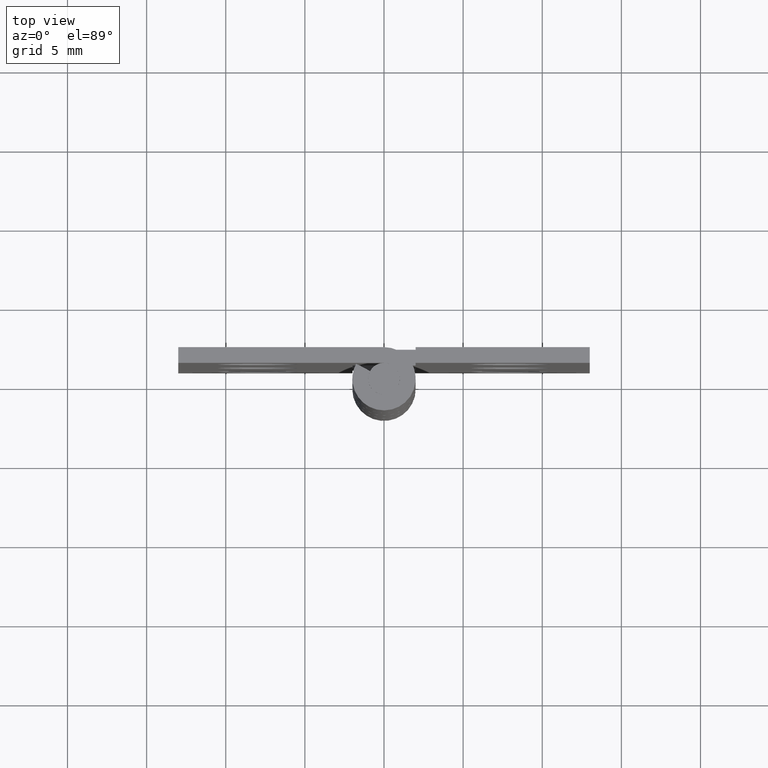
[diagram: clean part render]
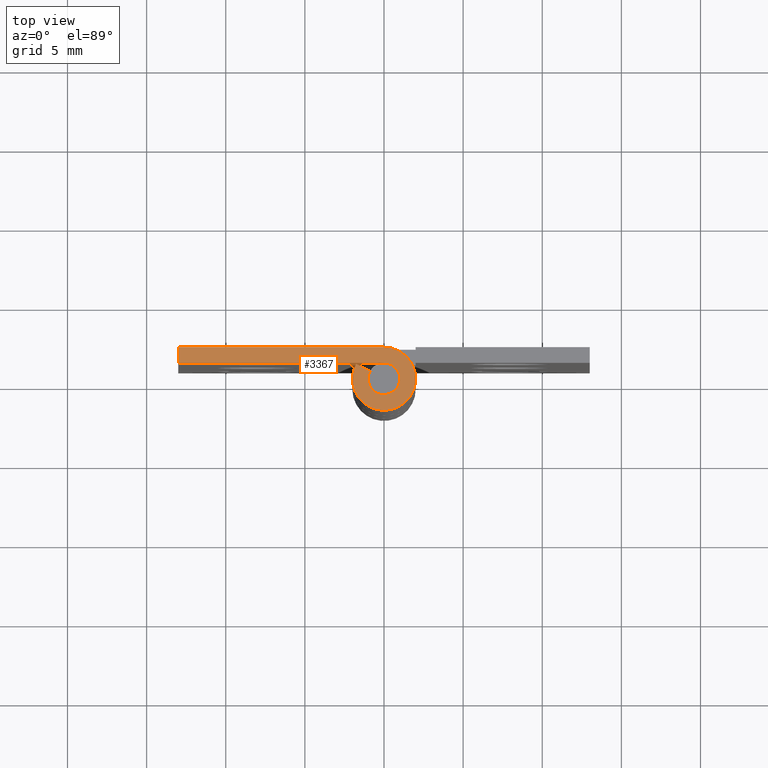
[diagram: same view with one face highlighted and labeled with its STEP entity id]
A machine part, top view. The second image highlights one B-rep face of the part: STEP entity #3367.
In plain terms, the highlighted face is a freeform B-spline surface patch.
Its self-contained STEP definition (entity closure, byte-faithful):
#3290=CARTESIAN_POINT('',(-13.749246279058150,-2.199489962611153,37.999992000000013));
#3291=CARTESIAN_POINT('',(2.749172770094424,-2.199489962611153,37.999992000000013));
#3292=CARTESIAN_POINT('',(-13.749246279058150,2.199785350273177,37.999992000000013));
#3293=CARTESIAN_POINT('',(2.749172770094424,2.199785350273177,37.999992000000013));
#3294=B_SPLINE_SURFACE_WITH_KNOTS('',1,1,((#3290,#3292),(#3291,#3293)),.UNSPECIFIED.,.F.,.F.,.U.,(2,2),(2,2),(0.0,16.498419049152570),(0.0,4.399275312884329),.UNSPECIFIED.);
#3295=CARTESIAN_POINT('',(-0.879985795339901,0.475000000000000,37.999992000000049));
#3296=VERTEX_POINT('',#3295);
#3297=CARTESIAN_POINT('',(-1.759971590679800,0.950000000000000,37.999992000000049));
#3298=VERTEX_POINT('',#3297);
#3299=CARTESIAN_POINT('',(-0.879985795339901,0.475000000000000,37.999992000000049));
#3300=CARTESIAN_POINT('',(-1.759971590679800,0.950000000000000,37.999992000000049));
#3301=QUASI_UNIFORM_CURVE('',1,(#3299,#3300),.UNSPECIFIED.,.F.,.U.);
#3302=EDGE_CURVE('',#3296,#3298,#3301,.T.);
#3303=ORIENTED_EDGE('',*,*,#3302,.T.);
#3304=CARTESIAN_POINT('',(1.224606E-016,2.0,37.999992000000049));
#3305=VERTEX_POINT('',#3304);
#3306=CARTESIAN_POINT('',(0.0,2.0,37.999992000000049));
#3307=CARTESIAN_POINT('',(1.523311426391113,2.000000000000000,37.999992000000049));
#3308=CARTESIAN_POINT('',(1.928096575312494,0.531454227820452,37.999992000000049));
#3309=CARTESIAN_POINT('',(2.332881724233875,-0.937091544359096,37.999992000000049));
#3310=CARTESIAN_POINT('',(1.024695076595960,-1.717556403731767,37.999992000000049));
#3311=CARTESIAN_POINT('',(-0.283491571041955,-2.498021263104438,37.999992000000049));
#3312=CARTESIAN_POINT('',(-1.383518044628769,-1.444256840103791,37.999992000000049));
#3313=CARTESIAN_POINT('',(-2.483544518215584,-0.390492417103145,37.999992000000049));
#3314=CARTESIAN_POINT('',(-1.759971590679804,0.950000000000001,37.999992000000049));
#3322=(BOUNDED_CURVE()B_SPLINE_CURVE(2,(#3306,#3307,#3308,#3309,#3310,#3311,#3312,#3313,#3314),.UNSPECIFIED.,.F.,.U.)B_SPLINE_CURVE_WITH_KNOTS((3,2,2,2,3),(0.0,0.250000000000000,0.500000000000000,0.750000000000000,1.0),.UNSPECIFIED.)CURVE()GEOMETRIC_REPRESENTATION_ITEM()RATIONAL_B_SPLINE_CURVE((1.0,0.795527219493534,1.0,0.795527219493534,1.0,0.795527219493534,1.0,0.795527219493534,1.0))REPRESENTATION_ITEM(''));
#3323=EDGE_CURVE('',#3305,#3298,#3322,.T.);
#3324=ORIENTED_EDGE('',*,*,#3323,.F.);
#3325=CARTESIAN_POINT('',(-13.0,2.0,37.999992000000049));
#3326=VERTEX_POINT('',#3325);
#3327=CARTESIAN_POINT('',(1.224606E-016,2.0,37.999992000000049));
#3328=CARTESIAN_POINT('',(-13.0,2.0,37.999992000000049));
#3329=QUASI_UNIFORM_CURVE('',1,(#3327,#3328),.UNSPECIFIED.,.F.,.U.);
#3330=EDGE_CURVE('',#3305,#3326,#3329,.T.);
#3331=ORIENTED_EDGE('',*,*,#3330,.T.);
#3332=CARTESIAN_POINT('',(-13.0,1.0,37.999992000000049));
#3333=VERTEX_POINT('',#3332);
#3334=CARTESIAN_POINT('',(-13.0,2.0,37.999992000000049));
#3335=CARTESIAN_POINT('',(-13.0,1.0,37.999992000000049));
#3336=QUASI_UNIFORM_CURVE('',1,(#3334,#3335),.UNSPECIFIED.,.F.,.U.);
#3337=EDGE_CURVE('',#3326,#3333,#3336,.T.);
#3338=ORIENTED_EDGE('',*,*,#3337,.T.);
#3339=CARTESIAN_POINT('',(0.0,1.0,37.999992000000049));
#3340=VERTEX_POINT('',#3339);
#3341=CARTESIAN_POINT('',(-13.0,1.0,37.999992000000049));
#3342=CARTESIAN_POINT('',(0.0,1.0,37.999992000000049));
#3343=QUASI_UNIFORM_CURVE('',1,(#3341,#3342),.UNSPECIFIED.,.F.,.U.);
#3344=EDGE_CURVE('',#3333,#3340,#3343,.T.);
#3345=ORIENTED_EDGE('',*,*,#3344,.T.);
#3346=CARTESIAN_POINT('',(0.0,1.0,37.999992000000049));
#3347=CARTESIAN_POINT('',(0.761655713195556,1.0,37.999992000000049));
#3348=CARTESIAN_POINT('',(0.964048287656247,0.265727113910226,37.999992000000049));
#3349=CARTESIAN_POINT('',(1.166440862116937,-0.468545772179548,37.999992000000049));
#3350=CARTESIAN_POINT('',(0.512347538297980,-0.858778201865883,37.999992000000049));
#3351=CARTESIAN_POINT('',(-0.141745785520977,-1.249010631552219,37.999992000000049));
#3352=CARTESIAN_POINT('',(-0.691759022314384,-0.722128420051896,37.999992000000049));
#3353=CARTESIAN_POINT('',(-1.241772259107792,-0.195246208551572,37.999992000000049));
#3354=CARTESIAN_POINT('',(-0.879985795339902,0.475000000000000,37.999992000000049));
#3362=(BOUNDED_CURVE()B_SPLINE_CURVE(2,(#3346,#3347,#3348,#3349,#3350,#3351,#3352,#3353,#3354),.UNSPECIFIED.,.F.,.U.)B_SPLINE_CURVE_WITH_KNOTS((3,2,2,2,3),(0.0,0.250000000000000,0.500000000000000,0.750000000000000,1.0),.UNSPECIFIED.)CURVE()GEOMETRIC_REPRESENTATION_ITEM()RATIONAL_B_SPLINE_CURVE((1.0,0.795527219493534,1.0,0.795527219493534,1.0,0.795527219493534,1.0,0.795527219493534,1.0))REPRESENTATION_ITEM(''));
#3363=EDGE_CURVE('',#3340,#3296,#3362,.T.);
#3364=ORIENTED_EDGE('',*,*,#3363,.T.);
#3365=EDGE_LOOP('',(#3303,#3324,#3331,#3338,#3345,#3364));
#3366=FACE_OUTER_BOUND('',#3365,.T.);
#3367=ADVANCED_FACE('',(#3366),#3294,.T.);